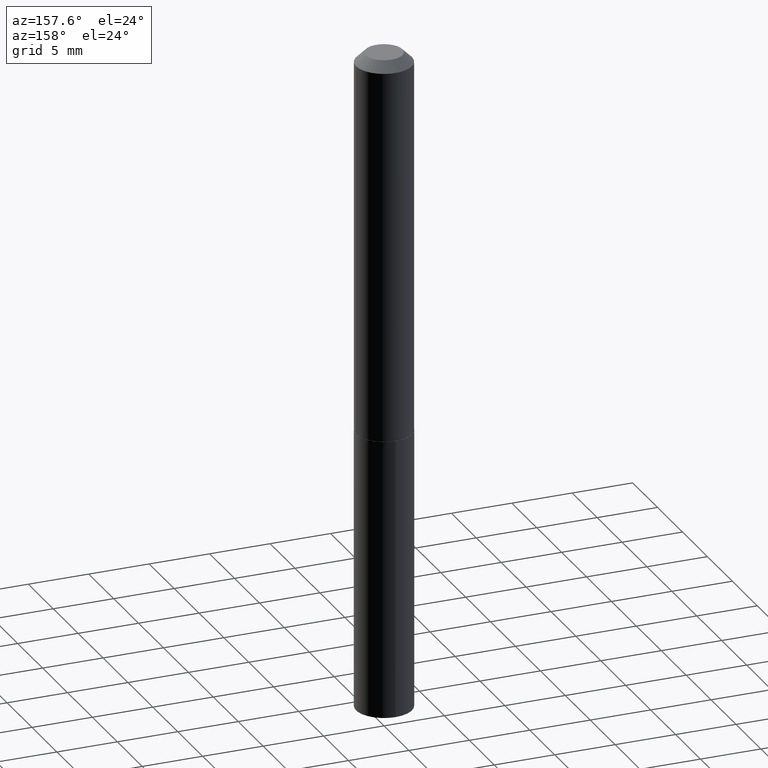
[diagram: clean part render]
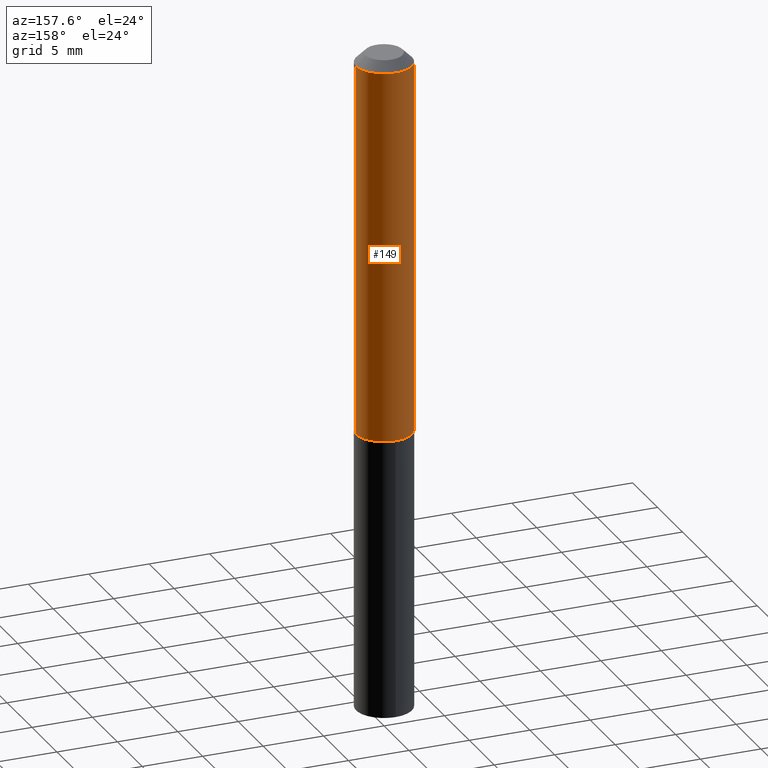
[diagram: same view with one face highlighted and labeled with its STEP entity id]
A machine part, auxiliary view. The second image highlights one B-rep face of the part: STEP entity #149.
In plain terms, the highlighted cylindrical surface (edge-blend (fillet) strip) has radius 2.3114 mm, axis along (-0, 0, 1).
Its self-contained STEP definition (entity closure, byte-faithful):
#29 = CIRCLE ( 'NONE', #165, 0.09100000000000013634 ) ;
#36 = EDGE_CURVE ( 'NONE', #229, #191, #151, .T. ) ;
#40 = DIRECTION ( 'NONE',  ( -2.445468806185136597E-29, 3.491481338843145583E-15, 1.000000000000000000 ) ) ;
#52 = CARTESIAN_POINT ( 'NONE',  ( -0.09099999999999999756, -1.579661899138169232E-15, -0.03125000000000020817 ) ) ;
#66 = FACE_OUTER_BOUND ( 'NONE', #77, .T. ) ;
#75 = DIRECTION ( 'NONE',  ( -2.445468806185136877E-29, 3.491481338843145188E-15, 1.000000000000000000 ) ) ;
#77 = EDGE_LOOP ( 'NONE', ( #222, #293, #168, #137 ) ) ;
#82 = DIRECTION ( 'NONE',  ( 1.000000000000000000, -6.982962677686269077E-15, 0.000000000000000000 ) ) ;
#87 = AXIS2_PLACEMENT_3D ( 'NONE', #299, #337, #164 ) ;
#104 = DIRECTION ( 'NONE',  ( -2.445468806185136877E-29, 3.491481338843145188E-15, 1.000000000000000000 ) ) ;
#118 = VECTOR ( 'NONE', #104, 39.37007874015748143 ) ;
#132 = VERTEX_POINT ( 'NONE', #281 ) ;
#136 = CYLINDRICAL_SURFACE ( 'NONE', #346, 0.09100000000000006695 ) ;
#137 = ORIENTED_EDGE ( 'NONE', *, *, #358, .F. ) ;
#149 = ADVANCED_FACE ( 'NONE', ( #66 ), #136, .T. ) ;
#150 = VERTEX_POINT ( 'NONE', #211 ) ;
#151 = CIRCLE ( 'NONE', #87, 0.09099999999999999756 ) ;
#164 = DIRECTION ( 'NONE',  ( 1.000000000000000000, -6.982962677686265922E-15, 0.000000000000000000 ) ) ;
#165 = AXIS2_PLACEMENT_3D ( 'NONE', #265, #179, #82 ) ;
#167 = DIRECTION ( 'NONE',  ( 1.000000000000000000, -6.982962677686265922E-15, 4.876176775795936353E-29 ) ) ;
#168 = ORIENTED_EDGE ( 'NONE', *, *, #36, .F. ) ;
#169 = CARTESIAN_POINT ( 'NONE',  ( 0.09100000000000006695, -6.354496036694506690E-16, 4.437320865974305243E-30 ) ) ;
#179 = DIRECTION ( 'NONE',  ( -2.445468806185136597E-29, 3.491481338843145583E-15, 1.000000000000000000 ) ) ;
#191 = VERTEX_POINT ( 'NONE', #52 ) ;
#211 = CARTESIAN_POINT ( 'NONE',  ( 0.09100000000000013634, -4.978852389190325393E-15, -1.244000000000000217 ) ) ;
#222 = ORIENTED_EDGE ( 'NONE', *, *, #264, .T. ) ;
#227 = EDGE_CURVE ( 'NONE', #132, #191, #266, .T. ) ;
#229 = VERTEX_POINT ( 'NONE', #362 ) ;
#243 = CARTESIAN_POINT ( 'NONE',  ( -0.09100000000000006695, 6.465938895416916448E-16, -4.476230932131967703E-30 ) ) ;
#264 = EDGE_CURVE ( 'NONE', #150, #132, #29, .T. ) ;
#265 = CARTESIAN_POINT ( 'NONE',  ( 3.042163194894310491E-29, -4.343402785520873640E-15, -1.244000000000000217 ) ) ;
#266 = LINE ( 'NONE', #243, #267 ) ;
#267 = VECTOR ( 'NONE', #75, 39.37007874015748143 ) ;
#281 = CARTESIAN_POINT ( 'NONE',  ( -0.09100000000000013634, -3.696808895979181896E-15, -1.244000000000000217 ) ) ;
#293 = ORIENTED_EDGE ( 'NONE', *, *, #227, .T. ) ;
#299 = CARTESIAN_POINT ( 'NONE',  ( 7.642090019328602662E-31, -1.091087918388490267E-16, -0.03125000000000020817 ) ) ;
#309 = CARTESIAN_POINT ( 'NONE',  ( 0.000000000000000000, 0.000000000000000000, 0.000000000000000000 ) ) ;
#337 = DIRECTION ( 'NONE',  ( -2.445468806185136597E-29, 3.491481338843145583E-15, 1.000000000000000000 ) ) ;
#346 = AXIS2_PLACEMENT_3D ( 'NONE', #309, #40, #167 ) ;
#358 = EDGE_CURVE ( 'NONE', #150, #229, #380, .T. ) ;
#362 = CARTESIAN_POINT ( 'NONE',  ( 0.09099999999999999756, -7.445583955082992766E-16, -0.03125000000000020817 ) ) ;
#380 = LINE ( 'NONE', #169, #118 ) ;